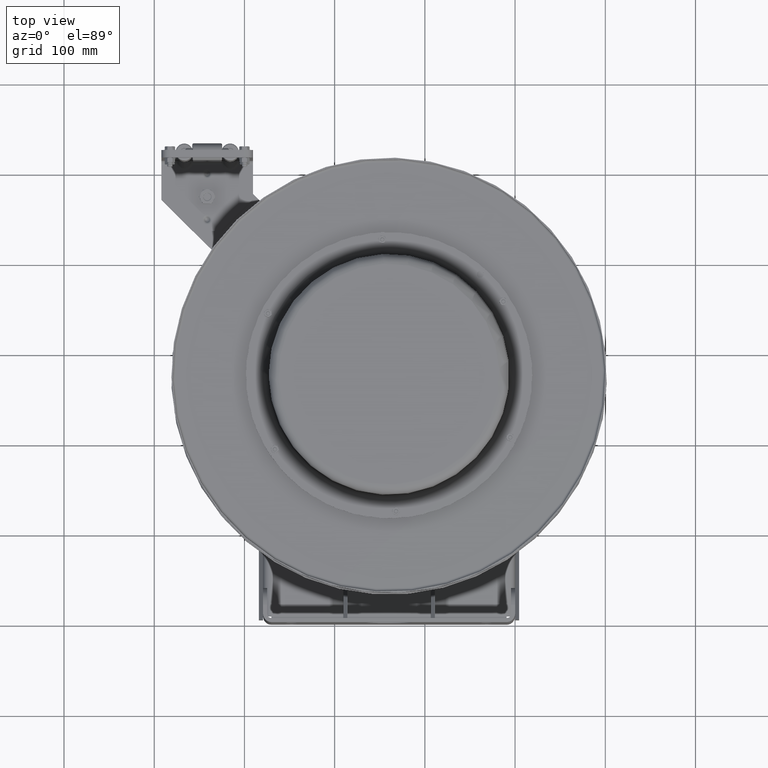
[diagram: clean part render]
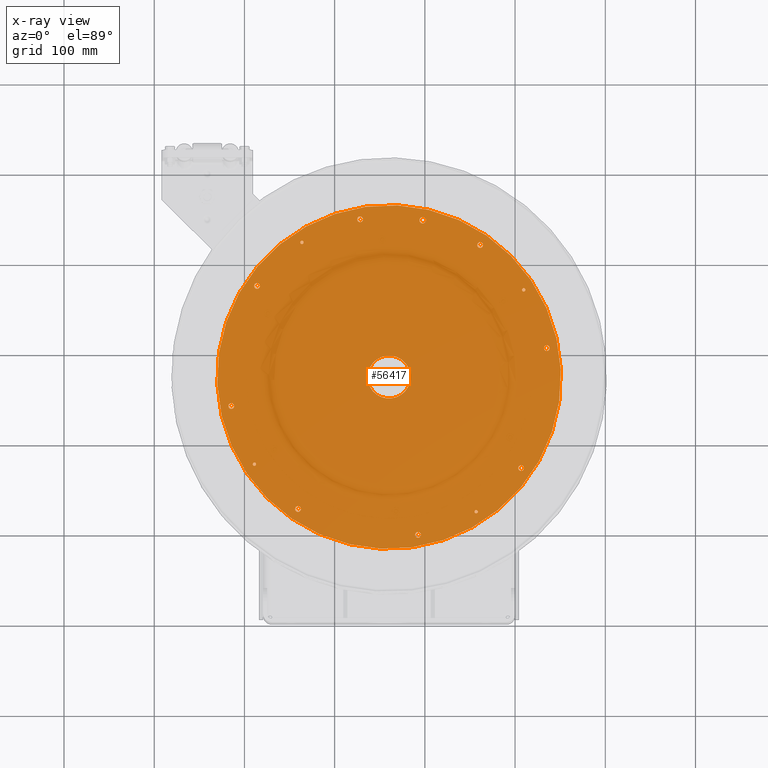
[diagram: x-ray — body ghosted, one internal face saturated and labeled with its STEP entity id]
A machine part, top view, then the same camera in x-ray: the body is ghosted and one INTERNAL B-rep face — a face not visible from any outside direction — is saturated and labeled: STEP entity #56417.
In plain terms, the highlighted planar face has unit normal (0, 0, 1).
Its self-contained STEP definition (entity closure, byte-faithful):
#4286=PLANE('',#63093);
#10478=FACE_BOUND('',#18807,.T.);
#10479=FACE_BOUND('',#18808,.T.);
#10480=FACE_BOUND('',#18809,.T.);
#10481=FACE_BOUND('',#18810,.T.);
#10482=FACE_BOUND('',#18811,.T.);
#10483=FACE_BOUND('',#18812,.T.);
#10484=FACE_BOUND('',#18813,.T.);
#10485=FACE_BOUND('',#18814,.T.);
#10486=FACE_BOUND('',#18815,.T.);
#10487=FACE_BOUND('',#18816,.T.);
#10488=FACE_BOUND('',#18817,.T.);
#10489=FACE_BOUND('',#18818,.T.);
#10490=FACE_BOUND('',#18819,.T.);
#10491=FACE_BOUND('',#18820,.T.);
#13988=FACE_OUTER_BOUND('',#18806,.T.);
#18806=EDGE_LOOP('',(#48233));
#18807=EDGE_LOOP('',(#48234));
#18808=EDGE_LOOP('',(#48235));
#18809=EDGE_LOOP('',(#48236));
#18810=EDGE_LOOP('',(#48237));
#18811=EDGE_LOOP('',(#48238));
#18812=EDGE_LOOP('',(#48239));
#18813=EDGE_LOOP('',(#48240));
#18814=EDGE_LOOP('',(#48241));
#18815=EDGE_LOOP('',(#48242));
#18816=EDGE_LOOP('',(#48243));
#18817=EDGE_LOOP('',(#48244));
#18818=EDGE_LOOP('',(#48245));
#18819=EDGE_LOOP('',(#48246));
#18820=EDGE_LOOP('',(#48247));
#21960=CIRCLE('',#63050,0.1405);
#21962=CIRCLE('',#63053,0.073);
#21964=CIRCLE('',#63056,0.073);
#21966=CIRCLE('',#63059,0.073);
#21968=CIRCLE('',#63062,0.073);
#21970=CIRCLE('',#63065,0.125);
#21972=CIRCLE('',#63068,0.125);
#21974=CIRCLE('',#63071,0.125);
#21976=CIRCLE('',#63074,0.125);
#21978=CIRCLE('',#63077,0.125);
#21980=CIRCLE('',#63080,0.125);
#21982=CIRCLE('',#63083,0.125);
#21984=CIRCLE('',#63086,0.125);
#21985=CIRCLE('',#63088,0.9375);
#21987=CIRCLE('',#63091,7.5);
#26812=VERTEX_POINT('',#106084);
#26814=VERTEX_POINT('',#106089);
#26816=VERTEX_POINT('',#106094);
#26818=VERTEX_POINT('',#106099);
#26820=VERTEX_POINT('',#106104);
#26822=VERTEX_POINT('',#106109);
#26824=VERTEX_POINT('',#106114);
#26826=VERTEX_POINT('',#106119);
#26828=VERTEX_POINT('',#106124);
#26830=VERTEX_POINT('',#106129);
#26832=VERTEX_POINT('',#106134);
#26834=VERTEX_POINT('',#106139);
#26836=VERTEX_POINT('',#106144);
#26837=VERTEX_POINT('',#106147);
#26839=VERTEX_POINT('',#106152);
#33974=EDGE_CURVE('',#26812,#26812,#21960,.T.);
#33976=EDGE_CURVE('',#26814,#26814,#21962,.T.);
#33978=EDGE_CURVE('',#26816,#26816,#21964,.T.);
#33980=EDGE_CURVE('',#26818,#26818,#21966,.T.);
#33982=EDGE_CURVE('',#26820,#26820,#21968,.T.);
#33984=EDGE_CURVE('',#26822,#26822,#21970,.T.);
#33986=EDGE_CURVE('',#26824,#26824,#21972,.T.);
#33988=EDGE_CURVE('',#26826,#26826,#21974,.T.);
#33990=EDGE_CURVE('',#26828,#26828,#21976,.T.);
#33992=EDGE_CURVE('',#26830,#26830,#21978,.T.);
#33994=EDGE_CURVE('',#26832,#26832,#21980,.T.);
#33996=EDGE_CURVE('',#26834,#26834,#21982,.T.);
#33998=EDGE_CURVE('',#26836,#26836,#21984,.T.);
#33999=EDGE_CURVE('',#26837,#26837,#21985,.T.);
#34001=EDGE_CURVE('',#26839,#26839,#21987,.T.);
#48233=ORIENTED_EDGE('',*,*,#34001,.F.);
#48234=ORIENTED_EDGE('',*,*,#33974,.T.);
#48235=ORIENTED_EDGE('',*,*,#33976,.T.);
#48236=ORIENTED_EDGE('',*,*,#33978,.T.);
#48237=ORIENTED_EDGE('',*,*,#33980,.T.);
#48238=ORIENTED_EDGE('',*,*,#33982,.T.);
#48239=ORIENTED_EDGE('',*,*,#33984,.T.);
#48240=ORIENTED_EDGE('',*,*,#33986,.T.);
#48241=ORIENTED_EDGE('',*,*,#33988,.T.);
#48242=ORIENTED_EDGE('',*,*,#33990,.T.);
#48243=ORIENTED_EDGE('',*,*,#33992,.T.);
#48244=ORIENTED_EDGE('',*,*,#33994,.T.);
#48245=ORIENTED_EDGE('',*,*,#33996,.T.);
#48246=ORIENTED_EDGE('',*,*,#33998,.T.);
#48247=ORIENTED_EDGE('',*,*,#33999,.T.);
#56417=ADVANCED_FACE('',(#13988,#10478,#10479,#10480,#10481,#10482,#10483,
#10484,#10485,#10486,#10487,#10488,#10489,#10490,#10491),#4286,.F.);
#63050=AXIS2_PLACEMENT_3D('',#106085,#78431,#78432);
#63053=AXIS2_PLACEMENT_3D('',#106090,#78437,#78438);
#63056=AXIS2_PLACEMENT_3D('',#106095,#78443,#78444);
#63059=AXIS2_PLACEMENT_3D('',#106100,#78449,#78450);
#63062=AXIS2_PLACEMENT_3D('',#106105,#78455,#78456);
#63065=AXIS2_PLACEMENT_3D('',#106110,#78461,#78462);
#63068=AXIS2_PLACEMENT_3D('',#106115,#78467,#78468);
#63071=AXIS2_PLACEMENT_3D('',#106120,#78473,#78474);
#63074=AXIS2_PLACEMENT_3D('',#106125,#78479,#78480);
#63077=AXIS2_PLACEMENT_3D('',#106130,#78485,#78486);
#63080=AXIS2_PLACEMENT_3D('',#106135,#78491,#78492);
#63083=AXIS2_PLACEMENT_3D('',#106140,#78497,#78498);
#63086=AXIS2_PLACEMENT_3D('',#106145,#78503,#78504);
#63088=AXIS2_PLACEMENT_3D('',#106148,#78507,#78508);
#63091=AXIS2_PLACEMENT_3D('',#106153,#78513,#78514);
#63093=AXIS2_PLACEMENT_3D('',#106156,#78517,#78518);
#78431=DIRECTION('center_axis',(4.25339506625062E-17,4.53831339461141E-17,
1.));
#78432=DIRECTION('ref_axis',(0.567806444900504,0.823162098938873,-6.15087271087584E-17));
#78437=DIRECTION('center_axis',(4.25339506625062E-17,4.53831339461141E-17,
1.));
#78438=DIRECTION('ref_axis',(-0.823162098938873,0.567806444900504,9.24350015912465E-18));
#78443=DIRECTION('center_axis',(4.25339506625062E-17,4.53831339461141E-17,
1.));
#78444=DIRECTION('ref_axis',(-0.567806444900504,-0.823162098938873,6.15087271087584E-17));
#78449=DIRECTION('center_axis',(4.25339506625062E-17,4.53831339461141E-17,
1.));
#78450=DIRECTION('ref_axis',(0.823162098938873,-0.567806444900504,-9.24350015912464E-18));
#78455=DIRECTION('center_axis',(4.25339506625062E-17,4.53831339461141E-17,
1.));
#78456=DIRECTION('ref_axis',(0.567806444900504,0.823162098938873,-6.15087271087584E-17));
#78461=DIRECTION('center_axis',(4.25339506625062E-17,4.53831339461141E-17,
1.));
#78462=DIRECTION('ref_axis',(-0.180563714584857,0.983563289766001,-3.69570963963399E-17));
#78467=DIRECTION('center_axis',(4.25339506625062E-17,4.53831339461141E-17,
1.));
#78468=DIRECTION('ref_axis',(-0.823162098938873,0.567806444900504,9.24350015912465E-18));
#78473=DIRECTION('center_axis',(4.25339506625062E-17,4.53831339461141E-17,
1.));
#78474=DIRECTION('ref_axis',(-0.983563289766001,-0.180563714584857,5.00293796851719E-17));
#78479=DIRECTION('center_axis',(4.25339506625062E-17,4.53831339461141E-17,
1.));
#78480=DIRECTION('ref_axis',(-0.567806444900504,-0.823162098938873,6.15087271087584E-17));
#78485=DIRECTION('center_axis',(4.25339506625062E-17,4.53831339461141E-17,
1.));
#78486=DIRECTION('ref_axis',(0.180563714584857,-0.983563289766001,3.69570963963399E-17));
#78491=DIRECTION('center_axis',(4.25339506625062E-17,4.53831339461141E-17,
1.));
#78492=DIRECTION('ref_axis',(0.823162098938873,-0.567806444900504,-9.24350015912464E-18));
#78497=DIRECTION('center_axis',(4.25339506625062E-17,4.53831339461141E-17,
1.));
#78498=DIRECTION('ref_axis',(0.983563289766001,0.180563714584857,-5.00293796851718E-17));
#78503=DIRECTION('center_axis',(4.25339506625062E-17,4.53831339461141E-17,
1.));
#78504=DIRECTION('ref_axis',(0.567806444900504,0.823162098938873,-6.15087271087584E-17));
#78507=DIRECTION('center_axis',(4.25339506625062E-17,4.53831339461141E-17,
1.));
#78508=DIRECTION('ref_axis',(0.567806444900504,0.823162098938873,-6.15087271087584E-17));
#78513=DIRECTION('center_axis',(4.25339506625062E-17,4.53831339461141E-17,
1.));
#78514=DIRECTION('ref_axis',(-0.567806444900504,-0.823162098938873,6.15087271087584E-17));
#78517=DIRECTION('center_axis',(4.25339506625062E-17,4.53831339461141E-17,
1.));
#78518=DIRECTION('ref_axis',(-0.567806444900504,-0.823162098938873,0.));
#106084=CARTESIAN_POINT('',(-3.95320340629392,17.7102034157163,3.71219999999994));
#106085=CARTESIAN_POINT('Origin',(-4.03298021180244,17.5945491408154,3.71219999999994));
#106089=CARTESIAN_POINT('',(0.317075918781933,14.5939373417435,3.71219999999994));
#106090=CARTESIAN_POINT('Origin',(0.377166752004471,14.5524874712658,3.71219999999994));
#106094=CARTESIAN_POINT('',(-9.34393734174352,16.5670759187819,3.71219999999994));
#106095=CARTESIAN_POINT('Origin',(-9.30248747126578,16.6271667520045,3.71219999999994));
#106099=CARTESIAN_POINT('',(-11.3170759187819,6.90606265825648,3.71219999999994));
#106100=CARTESIAN_POINT('Origin',(-11.3771667520045,6.94751252873422,3.71219999999994));
#106104=CARTESIAN_POINT('',(-1.65606265825649,4.93292408121806,3.71219999999994));
#106105=CARTESIAN_POINT('Origin',(-1.69751252873423,4.87283324799552,3.71219999999994));
#106109=CARTESIAN_POINT('',(1.3623725640389,12.1368914133147,3.71219999999994));
#106110=CARTESIAN_POINT('Origin',(1.38494302836201,12.013946002094,3.71219999999994));
#106114=CARTESIAN_POINT('',(-1.62825014806383,16.5831104981847,3.71219999999994));
#106115=CARTESIAN_POINT('Origin',(-1.52535488569647,16.5121346925721,3.71219999999994));
#106119=CARTESIAN_POINT('',(-6.88689141331475,17.6123725640389,3.71219999999994));
#106120=CARTESIAN_POINT('Origin',(-6.763946002094,17.634943028362,3.71219999999994));
#106124=CARTESIAN_POINT('',(-11.3331104981847,14.6217498519362,3.71219999999994));
#106125=CARTESIAN_POINT('Origin',(-11.2621346925721,14.7246451143035,3.71219999999994));
#106129=CARTESIAN_POINT('',(-12.3623725640389,9.36310858668525,3.71219999999994));
#106130=CARTESIAN_POINT('Origin',(-12.384943028362,9.486053997906,3.71219999999994));
#106134=CARTESIAN_POINT('',(-9.37174985193617,4.91688950181532,3.71219999999994));
#106135=CARTESIAN_POINT('Origin',(-9.47464511430353,4.98786530742788,3.71219999999994));
#106139=CARTESIAN_POINT('',(-4.11310858668526,3.88762743596109,3.71219999999994));
#106140=CARTESIAN_POINT('Origin',(-4.23605399790601,3.86505697163799,3.71219999999994));
#106144=CARTESIAN_POINT('',(0.33311049818467,6.87825014806382,3.71219999999994));
#106145=CARTESIAN_POINT('Origin',(0.262134692572108,6.77535488569647,3.71219999999994));
#106147=CARTESIAN_POINT('',(-4.96768145790578,11.5217144677552,3.71219999999994));
#106148=CARTESIAN_POINT('Origin',(-5.5,10.75,3.71219999999994));
#106152=CARTESIAN_POINT('',(-1.24145166324622,16.9237157420415,3.71219999999994));
#106153=CARTESIAN_POINT('Origin',(-5.5,10.75,3.71219999999994));
#106156=CARTESIAN_POINT('Origin',(-5.5,10.75,3.71219999999994));